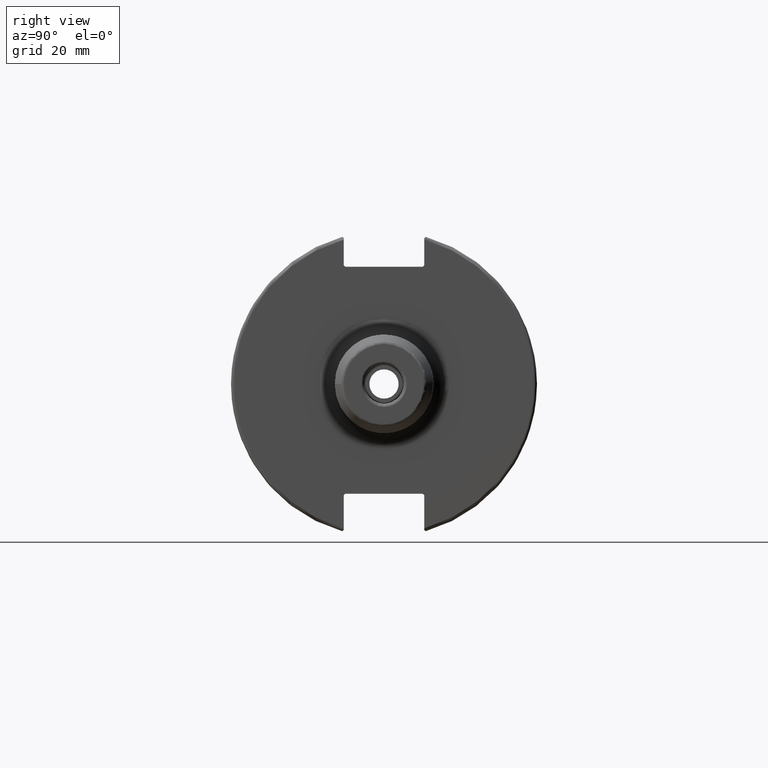
[diagram: clean part render]
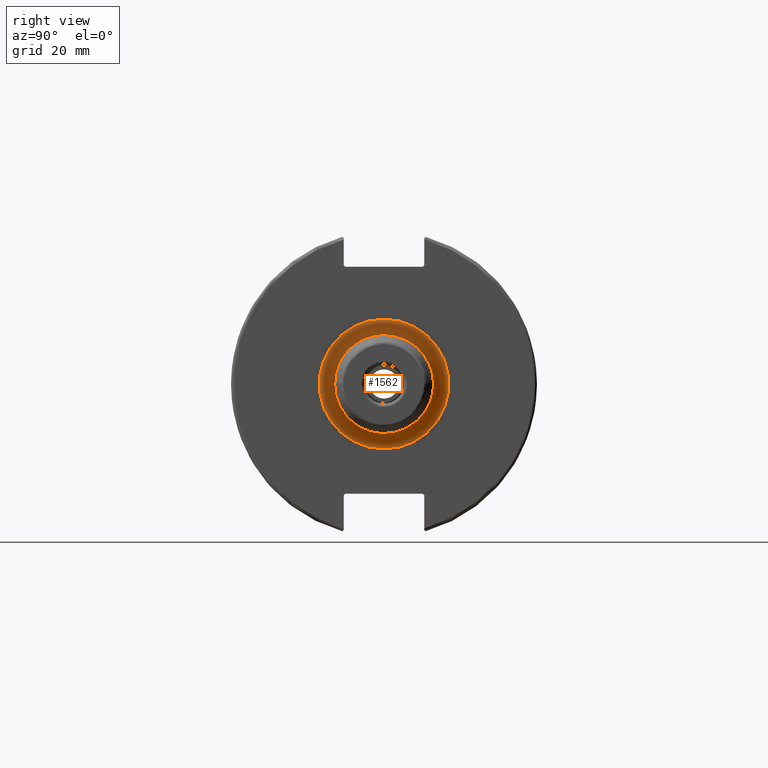
[diagram: same view with one face highlighted and labeled with its STEP entity id]
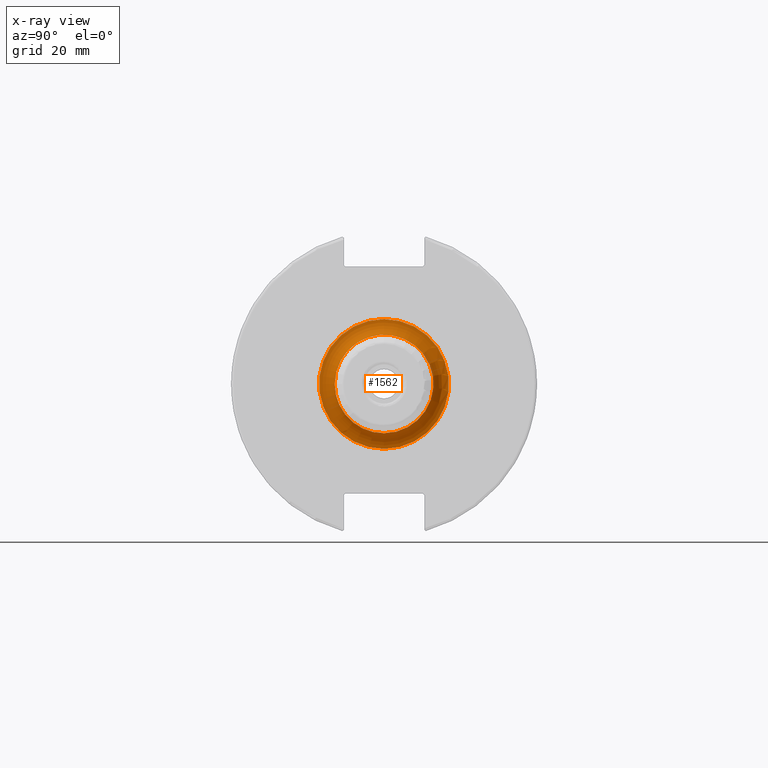
[diagram: x-ray of the same camera — body ghosted, the highlighted face saturated]
A machine part, right view. The second image highlights one B-rep face of the part: STEP entity #1562.
The next image is the same camera in x-ray: the body ghosted, the highlighted face saturated — about 1% of this face is hidden behind the body in this view.
In plain terms, the highlighted toroidal blend (fillet) surface has major radius 20.875 mm and minor (blend) radius 5 mm.
Its self-contained STEP definition (entity closure, byte-faithful):
#38=TOROIDAL_SURFACE('',#1693,20.875,5.);
#129=FACE_OUTER_BOUND('',#223,.T.);
#223=EDGE_LOOP('',(#1092,#1093,#1094,#1095,#1096));
#568=CIRCLE('',#1691,15.875);
#569=CIRCLE('',#1692,15.875);
#570=CIRCLE('',#1694,5.);
#571=CIRCLE('',#1695,20.875);
#653=VERTEX_POINT('',#2417);
#654=VERTEX_POINT('',#2419);
#655=VERTEX_POINT('',#2423);
#824=EDGE_CURVE('',#654,#653,#568,.T.);
#825=EDGE_CURVE('',#653,#654,#569,.T.);
#826=EDGE_CURVE('',#654,#655,#570,.T.);
#827=EDGE_CURVE('',#655,#655,#571,.T.);
#1092=ORIENTED_EDGE('',*,*,#825,.T.);
#1093=ORIENTED_EDGE('',*,*,#826,.T.);
#1094=ORIENTED_EDGE('',*,*,#827,.T.);
#1095=ORIENTED_EDGE('',*,*,#826,.F.);
#1096=ORIENTED_EDGE('',*,*,#824,.T.);
#1562=ADVANCED_FACE('',(#129),#38,.F.);
#1691=AXIS2_PLACEMENT_3D('',#2420,#1900,#1901);
#1692=AXIS2_PLACEMENT_3D('',#2421,#1902,#1903);
#1693=AXIS2_PLACEMENT_3D('',#2422,#1904,#1905);
#1694=AXIS2_PLACEMENT_3D('',#2424,#1906,#1907);
#1695=AXIS2_PLACEMENT_3D('',#2425,#1908,#1909);
#1900=DIRECTION('center_axis',(-1.,0.,0.));
#1901=DIRECTION('ref_axis',(0.,-1.,-1.22464679914735E-16));
#1902=DIRECTION('center_axis',(-1.,0.,0.));
#1903=DIRECTION('ref_axis',(0.,-1.,-1.22464679914735E-16));
#1904=DIRECTION('center_axis',(-1.,0.,0.));
#1905=DIRECTION('ref_axis',(0.,0.,1.));
#1906=DIRECTION('center_axis',(0.,-1.,1.22464679914735E-16));
#1907=DIRECTION('ref_axis',(0.,-1.22464679914735E-16,-1.));
#1908=DIRECTION('center_axis',(1.,0.,0.));
#1909=DIRECTION('ref_axis',(0.,-1.,-1.22464679914735E-16));
#2417=CARTESIAN_POINT('',(24.05,-15.875,-1.94412679364642E-15));
#2419=CARTESIAN_POINT('',(24.05,-1.94412679364642E-15,-15.875));
#2420=CARTESIAN_POINT('Origin',(24.05,0.,0.));
#2421=CARTESIAN_POINT('Origin',(24.05,0.,0.));
#2422=CARTESIAN_POINT('Origin',(24.05,0.,0.));
#2423=CARTESIAN_POINT('',(19.05,-2.5564501932201E-15,-20.875));
#2424=CARTESIAN_POINT('Origin',(24.05,-2.5564501932201E-15,-20.875));
#2425=CARTESIAN_POINT('Origin',(19.05,0.,0.));